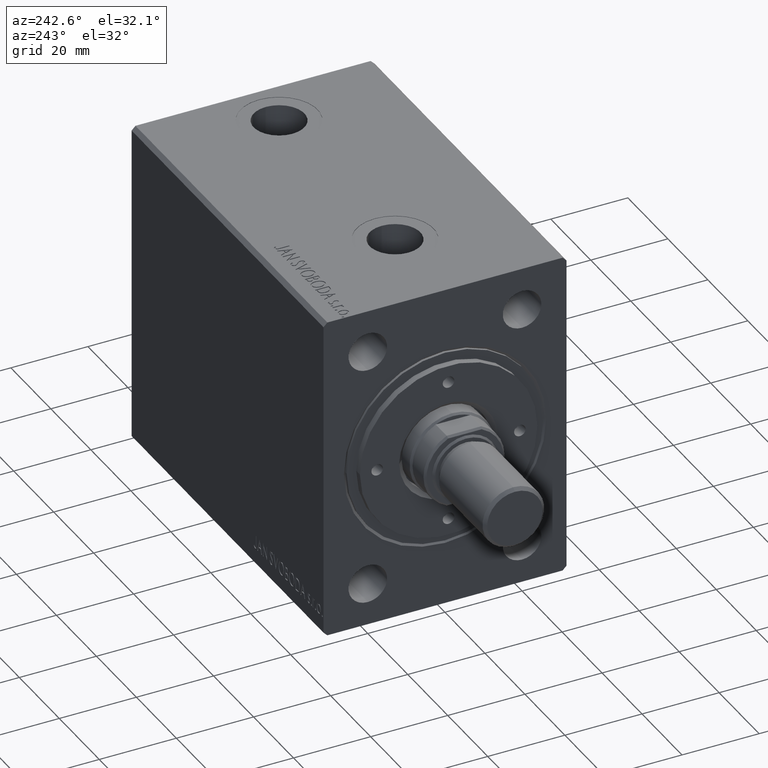
[diagram: clean part render]
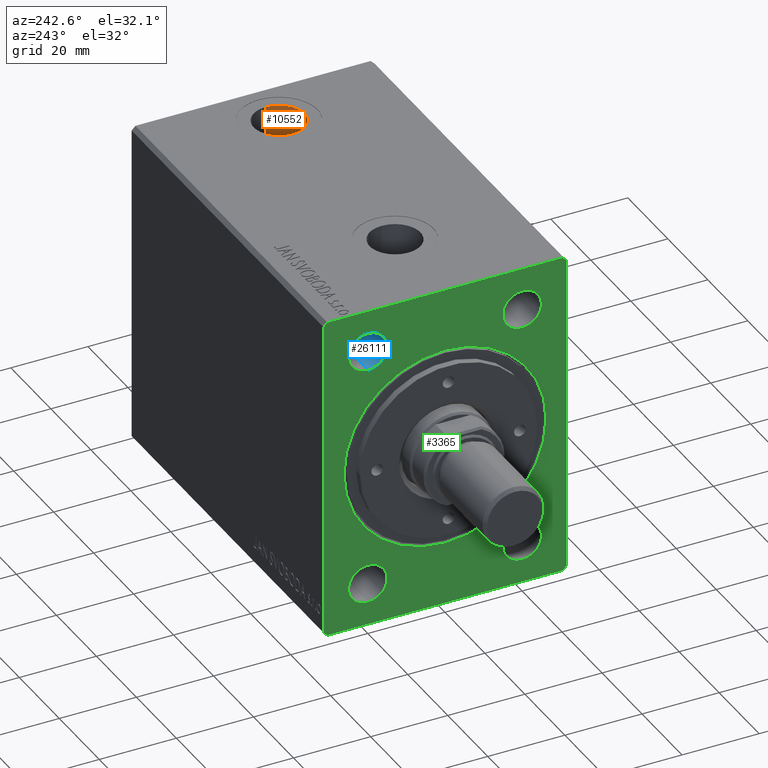
[diagram: same view with three faces highlighted in distinct colors, each labeled with its STEP entity id]
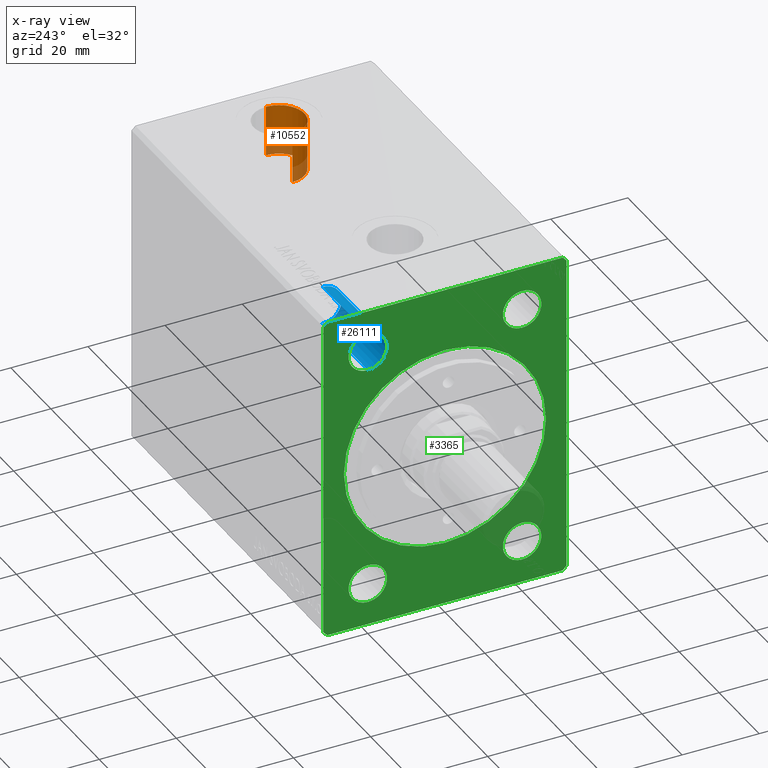
[diagram: x-ray of the same camera — body ghosted, the three highlighted faces saturated]
A machine part, auxiliary view with three faces highlighted in distinct colors.
The next image is the same camera in x-ray (body ghosted, the three faces saturated) — at least one of them is partly hidden behind the body in this view.
Their STEP definitions:

[orange] entity #10552 — the highlighted cylindrical surface (edge-blend (fillet) strip) has radius 6.58 mm, axis along (0, 0, 1).
#301 = AXIS2_PLACEMENT_3D ( 'NONE', #34670, #6965, #31275 ) ;
#6825 = VERTEX_POINT ( 'NONE', #18714 ) ;
#6965 = DIRECTION ( 'NONE',  ( -0.000000000000000000, -0.000000000000000000, 1.000000000000000000 ) ) ;
#7195 = FACE_OUTER_BOUND ( 'NONE', #43937, .T. ) ;
#8288 = ORIENTED_EDGE ( 'NONE', *, *, #40784, .T. ) ;
#9292 = AXIS2_PLACEMENT_3D ( 'NONE', #37271, #40407, #37033 ) ;
#10552 = ADVANCED_FACE ( 'NONE', ( #7195 ), #24074, .F. ) ;
#10825 = ORIENTED_EDGE ( 'NONE', *, *, #27005, .F. ) ;
#11871 = LINE ( 'NONE', #32581, #38001 ) ;
#12043 = VERTEX_POINT ( 'NONE', #18283 ) ;
#12824 = CIRCLE ( 'NONE', #41573, 6.580000000000002736 ) ;
#15473 = ORIENTED_EDGE ( 'NONE', *, *, #43329, .T. ) ;
#18283 = CARTESIAN_POINT ( 'NONE',  ( 76.42000000000000171, 1.343112912526420051E-15, 42.39999999999999147 ) ) ;
#18644 = CIRCLE ( 'NONE', #9292, 6.580000000000002736 ) ;
#18714 = CARTESIAN_POINT ( 'NONE',  ( 89.58000000000001251, 5.372953186874616010E-16, 42.39999999999999147 ) ) ;
#19372 = LINE ( 'NONE', #30614, #21237 ) ;
#21237 = VECTOR ( 'NONE', #22961, 1000.000000000000000 ) ;
#21427 = CARTESIAN_POINT ( 'NONE',  ( 89.58000000000001251, 5.372953186874616010E-16, 29.23999999999999488 ) ) ;
#22434 = DIRECTION ( 'NONE',  ( -0.000000000000000000, -0.000000000000000000, 1.000000000000000000 ) ) ;
#22961 = DIRECTION ( 'NONE',  ( -0.000000000000000000, -0.000000000000000000, 1.000000000000000000 ) ) ;
#24074 = CYLINDRICAL_SURFACE ( 'NONE', #301, 6.580000000000002736 ) ;
#24278 = DIRECTION ( 'NONE',  ( 1.000000000000000000, 0.000000000000000000, 0.000000000000000000 ) ) ;
#27005 = EDGE_CURVE ( 'NONE', #43912, #6825, #19372, .T. ) ;
#29013 = CARTESIAN_POINT ( 'NONE',  ( 76.42000000000000171, 1.343112912526420051E-15, 29.23999999999999488 ) ) ;
#30614 = CARTESIAN_POINT ( 'NONE',  ( 89.58000000000001251, 5.372953186874616010E-16, 29.23999999999999488 ) ) ;
#31275 = DIRECTION ( 'NONE',  ( 1.000000000000000000, 0.000000000000000000, 0.000000000000000000 ) ) ;
#32581 = CARTESIAN_POINT ( 'NONE',  ( 76.42000000000000171, 1.343112912526420051E-15, 29.23999999999999488 ) ) ;
#34670 = CARTESIAN_POINT ( 'NONE',  ( 83.00000000000000000, 5.372953186874616010E-16, 29.23999999999999488 ) ) ;
#35467 = ORIENTED_EDGE ( 'NONE', *, *, #40553, .F. ) ;
#37033 = DIRECTION ( 'NONE',  ( 1.000000000000000000, 0.000000000000000000, 0.000000000000000000 ) ) ;
#37271 = CARTESIAN_POINT ( 'NONE',  ( 83.00000000000000000, 5.372953186874616010E-16, 42.39999999999999147 ) ) ;
#37795 = DIRECTION ( 'NONE',  ( 0.000000000000000000, 0.000000000000000000, 1.000000000000000000 ) ) ;
#38001 = VECTOR ( 'NONE', #22434, 1000.000000000000000 ) ;
#38453 = CARTESIAN_POINT ( 'NONE',  ( 83.00000000000000000, 5.372953186874616010E-16, 29.23999999999999488 ) ) ;
#40407 = DIRECTION ( 'NONE',  ( 0.000000000000000000, 0.000000000000000000, 1.000000000000000000 ) ) ;
#40553 = EDGE_CURVE ( 'NONE', #44169, #43912, #12824, .T. ) ;
#40784 = EDGE_CURVE ( 'NONE', #44169, #12043, #11871, .T. ) ;
#41573 = AXIS2_PLACEMENT_3D ( 'NONE', #38453, #37795, #24278 ) ;
#43329 = EDGE_CURVE ( 'NONE', #12043, #6825, #18644, .T. ) ;
#43912 = VERTEX_POINT ( 'NONE', #21427 ) ;
#43937 = EDGE_LOOP ( 'NONE', ( #35467, #8288, #15473, #10825 ) ) ;
#44169 = VERTEX_POINT ( 'NONE', #29013 ) ;

[blue] entity #26111 — the highlighted cylindrical surface (edge-blend (fillet) strip) has radius 5 mm, axis along (-1, -0, -0).
#14 = VERTEX_POINT ( 'NONE', #28937 ) ;
#1633 = CARTESIAN_POINT ( 'NONE',  ( 1.224646799147350495E-16, 19.99999999999999645, 36.50000000000000000 ) ) ;
#2680 = DIRECTION ( 'NONE',  ( -1.000000000000000000, -0.000000000000000000, -0.000000000000000000 ) ) ;
#3265 = AXIS2_PLACEMENT_3D ( 'NONE', #23634, #2680, #13056 ) ;
#5880 = ORIENTED_EDGE ( 'NONE', *, *, #27435, .T. ) ;
#6218 = VERTEX_POINT ( 'NONE', #1633 ) ;
#7215 = CARTESIAN_POINT ( 'NONE',  ( 1.224646799147350495E-16, 19.99999999999999645, 26.50000000000000355 ) ) ;
#7371 = CARTESIAN_POINT ( 'NONE',  ( 1.224646799147350495E-16, 19.99999999999999645, 31.50000000000000000 ) ) ;
#7874 = LINE ( 'NONE', #38934, #34328 ) ;
#8556 = VECTOR ( 'NONE', #30145, 1000.000000000000000 ) ;
#8629 = CARTESIAN_POINT ( 'NONE',  ( 22.67000000000000171, 19.99999999999999645, 26.50000000000000711 ) ) ;
#12479 = DIRECTION ( 'NONE',  ( -1.000000000000000000, -0.000000000000000000, -0.000000000000000000 ) ) ;
#13056 = DIRECTION ( 'NONE',  ( 0.000000000000000000, 0.000000000000000000, 1.000000000000000000 ) ) ;
#15000 = EDGE_CURVE ( 'NONE', #14, #6218, #7874, .T. ) ;
#18407 = CIRCLE ( 'NONE', #31364, 4.999999999999997335 ) ;
#18954 = EDGE_CURVE ( 'NONE', #33465, #14, #33698, .T. ) ;
#19064 = ORIENTED_EDGE ( 'NONE', *, *, #18954, .F. ) ;
#19582 = EDGE_CURVE ( 'NONE', #33465, #37118, #39606, .T. ) ;
#20432 = DIRECTION ( 'NONE',  ( -1.000000000000000000, -0.000000000000000000, -0.000000000000000000 ) ) ;
#23395 = CYLINDRICAL_SURFACE ( 'NONE', #3265, 4.999999999999997335 ) ;
#23634 = CARTESIAN_POINT ( 'NONE',  ( 0.000000000000000000, 19.99999999999999645, 31.50000000000000000 ) ) ;
#26111 = ADVANCED_FACE ( 'NONE', ( #40065 ), #23395, .F. ) ;
#27435 = EDGE_CURVE ( 'NONE', #37118, #6218, #18407, .T. ) ;
#28937 = CARTESIAN_POINT ( 'NONE',  ( 22.67000000000000171, 19.99999999999999645, 36.49999999999999289 ) ) ;
#30145 = DIRECTION ( 'NONE',  ( -1.000000000000000000, -0.000000000000000000, -0.000000000000000000 ) ) ;
#31292 = DIRECTION ( 'NONE',  ( -1.000000000000000000, -0.000000000000000000, -0.000000000000000000 ) ) ;
#31364 = AXIS2_PLACEMENT_3D ( 'NONE', #7371, #20432, #34180 ) ;
#32973 = CARTESIAN_POINT ( 'NONE',  ( 22.67000000000000171, 19.99999999999999645, 31.50000000000000000 ) ) ;
#33465 = VERTEX_POINT ( 'NONE', #8629 ) ;
#33698 = CIRCLE ( 'NONE', #39444, 4.999999999999990230 ) ;
#34180 = DIRECTION ( 'NONE',  ( 0.000000000000000000, 0.000000000000000000, 1.000000000000000000 ) ) ;
#34328 = VECTOR ( 'NONE', #31292, 1000.000000000000000 ) ;
#34880 = ORIENTED_EDGE ( 'NONE', *, *, #15000, .F. ) ;
#35918 = DIRECTION ( 'NONE',  ( 0.000000000000000000, 0.000000000000000000, 1.000000000000000000 ) ) ;
#36017 = CARTESIAN_POINT ( 'NONE',  ( 0.000000000000000000, 19.99999999999999645, 26.50000000000000355 ) ) ;
#36522 = ORIENTED_EDGE ( 'NONE', *, *, #19582, .T. ) ;
#37118 = VERTEX_POINT ( 'NONE', #7215 ) ;
#38934 = CARTESIAN_POINT ( 'NONE',  ( 0.000000000000000000, 19.99999999999999645, 36.50000000000000000 ) ) ;
#39444 = AXIS2_PLACEMENT_3D ( 'NONE', #32973, #12479, #35918 ) ;
#39606 = LINE ( 'NONE', #36017, #8556 ) ;
#40065 = FACE_OUTER_BOUND ( 'NONE', #40706, .T. ) ;
#40706 = EDGE_LOOP ( 'NONE', ( #19064, #36522, #5880, #34880 ) ) ;

[green] entity #3365 — the highlighted planar face has unit normal (1, 0, 0).
#645 = DIRECTION ( 'NONE',  ( -1.000000000000000000, -0.000000000000000000, -0.000000000000000000 ) ) ;
#1633 = CARTESIAN_POINT ( 'NONE',  ( 1.224646799147350495E-16, 19.99999999999999645, 36.50000000000000000 ) ) ;
#2065 = EDGE_LOOP ( 'NONE', ( #19836, #41101 ) ) ;
#2201 = CARTESIAN_POINT ( 'NONE',  ( 0.000000000000000000, 0.000000000000000000, 0.000000000000000000 ) ) ;
#2312 = DIRECTION ( 'NONE',  ( 0.000000000000000000, -1.000000000000000000, 0.000000000000000000 ) ) ;
#2432 = ORIENTED_EDGE ( 'NONE', *, *, #26787, .F. ) ;
#2538 = CIRCLE ( 'NONE', #21960, 4.999999999999997335 ) ;
#2687 = CARTESIAN_POINT ( 'NONE',  ( 1.224646799147350495E-16, -20.00000000000000355, -26.50000000000000355 ) ) ;
#2905 = CARTESIAN_POINT ( 'NONE',  ( 1.224646799147350495E-16, 19.99999999999999645, -36.50000000000000000 ) ) ;
#2922 = LINE ( 'NONE', #9473, #10639 ) ;
#2939 = DIRECTION ( 'NONE',  ( 1.000000000000000000, 0.000000000000000000, 0.000000000000000000 ) ) ;
#3365 = ADVANCED_FACE ( 'NONE', ( #43057, #29547, #6122, #8624, #43709, #12226 ), #16042, .F. ) ;
#3721 = EDGE_CURVE ( 'NONE', #6218, #37118, #40381, .T. ) ;
#3771 = EDGE_CURVE ( 'NONE', #32125, #42531, #26450, .T. ) ;
#6122 = FACE_BOUND ( 'NONE', #13890, .T. ) ;
#6218 = VERTEX_POINT ( 'NONE', #1633 ) ;
#6695 = VERTEX_POINT ( 'NONE', #35173 ) ;
#7215 = CARTESIAN_POINT ( 'NONE',  ( 1.224646799147350495E-16, 19.99999999999999645, 26.50000000000000355 ) ) ;
#7249 = VERTEX_POINT ( 'NONE', #35003 ) ;
#7358 = ORIENTED_EDGE ( 'NONE', *, *, #17651, .T. ) ;
#7371 = CARTESIAN_POINT ( 'NONE',  ( 1.224646799147350495E-16, 19.99999999999999645, 31.50000000000000000 ) ) ;
#7490 = CARTESIAN_POINT ( 'NONE',  ( 0.000000000000000000, 31.50000000000001421, -41.50000000000000711 ) ) ;
#8065 = EDGE_CURVE ( 'NONE', #19949, #39845, #37645, .T. ) ;
#8477 = AXIS2_PLACEMENT_3D ( 'NONE', #12330, #18420, #25396 ) ;
#8491 = CIRCLE ( 'NONE', #19994, 26.20000000000001350 ) ;
#8624 = FACE_BOUND ( 'NONE', #12320, .T. ) ;
#8767 = ORIENTED_EDGE ( 'NONE', *, *, #44064, .F. ) ;
#9473 = CARTESIAN_POINT ( 'NONE',  ( 0.000000000000000000, -31.50000000000000000, 41.49999999999999289 ) ) ;
#10474 = VERTEX_POINT ( 'NONE', #2905 ) ;
#10639 = VECTOR ( 'NONE', #24094, 1000.000000000000000 ) ;
#10811 = CARTESIAN_POINT ( 'NONE',  ( 0.000000000000000000, 31.50000000000001421, 41.49999999999999289 ) ) ;
#11213 = DIRECTION ( 'NONE',  ( 0.000000000000000000, 0.7071067811865451302, -0.7071067811865500152 ) ) ;
#11523 = CARTESIAN_POINT ( 'NONE',  ( 0.000000000000000000, -30.50000000000000711, -42.50000000000000711 ) ) ;
#11864 = EDGE_CURVE ( 'NONE', #31024, #34440, #33392, .T. ) ;
#11886 = CIRCLE ( 'NONE', #37043, 4.999999999999997335 ) ;
#12180 = CARTESIAN_POINT ( 'NONE',  ( 1.224646799147350495E-16, 19.99999999999999645, -31.50000000000000000 ) ) ;
#12200 = VERTEX_POINT ( 'NONE', #27467 ) ;
#12226 = FACE_OUTER_BOUND ( 'NONE', #21405, .T. ) ;
#12320 = EDGE_LOOP ( 'NONE', ( #21389, #32622 ) ) ;
#12330 = CARTESIAN_POINT ( 'NONE',  ( 1.224646799147350495E-16, -20.00000000000000355, -31.50000000000000000 ) ) ;
#12577 = DIRECTION ( 'NONE',  ( 0.000000000000000000, 0.000000000000000000, -1.000000000000000000 ) ) ;
#12590 = VECTOR ( 'NONE', #29145, 999.9999999999998863 ) ;
#13184 = DIRECTION ( 'NONE',  ( 0.000000000000000000, 0.000000000000000000, 1.000000000000000000 ) ) ;
#13200 = CARTESIAN_POINT ( 'NONE',  ( 0.000000000000000000, 30.50000000000001776, -42.50000000000000711 ) ) ;
#13277 = CARTESIAN_POINT ( 'NONE',  ( 0.000000000000000000, 0.000000000000000000, 26.20000000000001350 ) ) ;
#13406 = DIRECTION ( 'NONE',  ( -1.000000000000000000, -0.000000000000000000, -0.000000000000000000 ) ) ;
#13751 = VERTEX_POINT ( 'NONE', #16499 ) ;
#13890 = EDGE_LOOP ( 'NONE', ( #2432, #8767 ) ) ;
#14028 = EDGE_CURVE ( 'NONE', #7249, #27028, #2538, .T. ) ;
#14092 = EDGE_CURVE ( 'NONE', #12200, #31024, #38485, .T. ) ;
#14162 = DIRECTION ( 'NONE',  ( 0.000000000000000000, 0.000000000000000000, 1.000000000000000000 ) ) ;
#15418 = CARTESIAN_POINT ( 'NONE',  ( 0.000000000000000000, -30.50000000000000355, 42.49999999999999289 ) ) ;
#15455 = EDGE_CURVE ( 'NONE', #39845, #19949, #42223, .T. ) ;
#15953 = DIRECTION ( 'NONE',  ( 1.000000000000000000, 0.000000000000000000, 0.000000000000000000 ) ) ;
#16042 = PLANE ( 'NONE',  #23116 ) ;
#16171 = ORIENTED_EDGE ( 'NONE', *, *, #18678, .F. ) ;
#16187 = ORIENTED_EDGE ( 'NONE', *, *, #26840, .F. ) ;
#16408 = EDGE_CURVE ( 'NONE', #21937, #6695, #2922, .T. ) ;
#16499 = CARTESIAN_POINT ( 'NONE',  ( 0.000000000000000000, -30.50000000000000711, -42.50000000000000711 ) ) ;
#16520 = AXIS2_PLACEMENT_3D ( 'NONE', #29290, #43017, #39646 ) ;
#17160 = ORIENTED_EDGE ( 'NONE', *, *, #3721, .F. ) ;
#17620 = VECTOR ( 'NONE', #2312, 1000.000000000000000 ) ;
#17651 = EDGE_CURVE ( 'NONE', #42095, #26939, #8491, .T. ) ;
#17744 = ORIENTED_EDGE ( 'NONE', *, *, #34704, .F. ) ;
#18225 = AXIS2_PLACEMENT_3D ( 'NONE', #20878, #34182, #41350 ) ;
#18407 = CIRCLE ( 'NONE', #31364, 4.999999999999997335 ) ;
#18420 = DIRECTION ( 'NONE',  ( -1.000000000000000000, -0.000000000000000000, -0.000000000000000000 ) ) ;
#18678 = EDGE_CURVE ( 'NONE', #6695, #13751, #42028, .T. ) ;
#19363 = CARTESIAN_POINT ( 'NONE',  ( 0.000000000000000000, 3.208574613766067271E-15, -26.20000000000001350 ) ) ;
#19692 = CARTESIAN_POINT ( 'NONE',  ( 0.000000000000000000, 31.50000000000001421, -41.50000000000000711 ) ) ;
#19836 = ORIENTED_EDGE ( 'NONE', *, *, #32791, .F. ) ;
#19949 = VERTEX_POINT ( 'NONE', #25286 ) ;
#19994 = AXIS2_PLACEMENT_3D ( 'NONE', #2201, #15953, #12577 ) ;
#20115 = CIRCLE ( 'NONE', #16520, 4.999999999999997335 ) ;
#20390 = CARTESIAN_POINT ( 'NONE',  ( 1.224646799147350495E-16, -20.00000000000000355, 31.50000000000000000 ) ) ;
#20413 = ORIENTED_EDGE ( 'NONE', *, *, #41965, .F. ) ;
#20432 = DIRECTION ( 'NONE',  ( -1.000000000000000000, -0.000000000000000000, -0.000000000000000000 ) ) ;
#20627 = CARTESIAN_POINT ( 'NONE',  ( 0.000000000000000000, -30.50000000000000355, 42.49999999999999289 ) ) ;
#20878 = CARTESIAN_POINT ( 'NONE',  ( 1.224646799147350495E-16, -20.00000000000000355, 31.50000000000000000 ) ) ;
#21389 = ORIENTED_EDGE ( 'NONE', *, *, #8065, .F. ) ;
#21405 = EDGE_LOOP ( 'NONE', ( #39017, #20413, #25640, #16187, #16171, #22901, #17744, #30442 ) ) ;
#21937 = VERTEX_POINT ( 'NONE', #38948 ) ;
#21943 = LINE ( 'NONE', #15418, #12590 ) ;
#21960 = AXIS2_PLACEMENT_3D ( 'NONE', #37826, #26794, #41401 ) ;
#22298 = DIRECTION ( 'NONE',  ( 0.000000000000000000, 0.000000000000000000, 1.000000000000000000 ) ) ;
#22891 = ORIENTED_EDGE ( 'NONE', *, *, #27435, .F. ) ;
#22901 = ORIENTED_EDGE ( 'NONE', *, *, #16408, .F. ) ;
#23008 = DIRECTION ( 'NONE',  ( 1.000000000000000000, 0.000000000000000000, 0.000000000000000000 ) ) ;
#23116 = AXIS2_PLACEMENT_3D ( 'NONE', #26618, #23008, #39682 ) ;
#24094 = DIRECTION ( 'NONE',  ( 0.000000000000000000, 0.000000000000000000, -1.000000000000000000 ) ) ;
#24131 = VECTOR ( 'NONE', #35337, 1000.000000000000114 ) ;
#25253 = DIRECTION ( 'NONE',  ( 0.000000000000000000, 1.000000000000000000, 0.000000000000000000 ) ) ;
#25286 = CARTESIAN_POINT ( 'NONE',  ( 1.224646799147350495E-16, -20.00000000000000355, 36.50000000000000000 ) ) ;
#25396 = DIRECTION ( 'NONE',  ( 0.000000000000000000, 0.000000000000000000, 1.000000000000000000 ) ) ;
#25640 = ORIENTED_EDGE ( 'NONE', *, *, #3771, .F. ) ;
#26450 = LINE ( 'NONE', #33891, #28187 ) ;
#26618 = CARTESIAN_POINT ( 'NONE',  ( 0.000000000000000000, 0.000000000000000000, 0.000000000000000000 ) ) ;
#26787 = EDGE_CURVE ( 'NONE', #26824, #10474, #11886, .T. ) ;
#26794 = DIRECTION ( 'NONE',  ( -1.000000000000000000, -0.000000000000000000, -0.000000000000000000 ) ) ;
#26824 = VERTEX_POINT ( 'NONE', #42783 ) ;
#26840 = EDGE_CURVE ( 'NONE', #13751, #32125, #43224, .T. ) ;
#26878 = CARTESIAN_POINT ( 'NONE',  ( 0.000000000000000000, 30.50000000000001421, 42.49999999999999289 ) ) ;
#26939 = VERTEX_POINT ( 'NONE', #13277 ) ;
#27028 = VERTEX_POINT ( 'NONE', #2687 ) ;
#27435 = EDGE_CURVE ( 'NONE', #37118, #6218, #18407, .T. ) ;
#27467 = CARTESIAN_POINT ( 'NONE',  ( 0.000000000000000000, 31.50000000000001421, 41.49999999999999289 ) ) ;
#27888 = CIRCLE ( 'NONE', #8477, 4.999999999999997335 ) ;
#28187 = VECTOR ( 'NONE', #33433, 999.9999999999998863 ) ;
#28421 = LINE ( 'NONE', #7490, #40870 ) ;
#28561 = CARTESIAN_POINT ( 'NONE',  ( 1.224646799147350495E-16, 19.99999999999999645, 31.50000000000000000 ) ) ;
#29145 = DIRECTION ( 'NONE',  ( 0.000000000000000000, -0.7071067811865462405, -0.7071067811865489050 ) ) ;
#29290 = CARTESIAN_POINT ( 'NONE',  ( 1.224646799147350495E-16, 19.99999999999999645, -31.50000000000000000 ) ) ;
#29547 = FACE_BOUND ( 'NONE', #2065, .T. ) ;
#30084 = VECTOR ( 'NONE', #11213, 1000.000000000000114 ) ;
#30442 = ORIENTED_EDGE ( 'NONE', *, *, #11864, .F. ) ;
#30757 = CIRCLE ( 'NONE', #40803, 26.20000000000001350 ) ;
#31024 = VERTEX_POINT ( 'NONE', #26878 ) ;
#31364 = AXIS2_PLACEMENT_3D ( 'NONE', #7371, #20432, #34180 ) ;
#31589 = DIRECTION ( 'NONE',  ( 0.000000000000000000, 0.000000000000000000, 1.000000000000000000 ) ) ;
#32125 = VERTEX_POINT ( 'NONE', #13200 ) ;
#32127 = CARTESIAN_POINT ( 'NONE',  ( 0.000000000000000000, -31.50000000000000000, -41.50000000000000711 ) ) ;
#32622 = ORIENTED_EDGE ( 'NONE', *, *, #15455, .F. ) ;
#32791 = EDGE_CURVE ( 'NONE', #27028, #7249, #27888, .T. ) ;
#33363 = EDGE_LOOP ( 'NONE', ( #17160, #22891 ) ) ;
#33392 = LINE ( 'NONE', #37212, #17620 ) ;
#33433 = DIRECTION ( 'NONE',  ( 0.000000000000000000, 0.7071067811865462405, 0.7071067811865489050 ) ) ;
#33595 = AXIS2_PLACEMENT_3D ( 'NONE', #20390, #13406, #13184 ) ;
#33891 = CARTESIAN_POINT ( 'NONE',  ( 0.000000000000000000, 30.50000000000001776, -42.50000000000000711 ) ) ;
#34180 = DIRECTION ( 'NONE',  ( 0.000000000000000000, 0.000000000000000000, 1.000000000000000000 ) ) ;
#34182 = DIRECTION ( 'NONE',  ( -1.000000000000000000, -0.000000000000000000, -0.000000000000000000 ) ) ;
#34440 = VERTEX_POINT ( 'NONE', #20627 ) ;
#34704 = EDGE_CURVE ( 'NONE', #34440, #21937, #21943, .T. ) ;
#35003 = CARTESIAN_POINT ( 'NONE',  ( 1.224646799147350495E-16, -20.00000000000000355, -36.50000000000000000 ) ) ;
#35173 = CARTESIAN_POINT ( 'NONE',  ( 0.000000000000000000, -31.50000000000000000, -41.50000000000000711 ) ) ;
#35337 = DIRECTION ( 'NONE',  ( 0.000000000000000000, -0.7071067811865474617, 0.7071067811865474617 ) ) ;
#36338 = VECTOR ( 'NONE', #25253, 1000.000000000000000 ) ;
#36939 = DIRECTION ( 'NONE',  ( 0.000000000000000000, 0.000000000000000000, -1.000000000000000000 ) ) ;
#37043 = AXIS2_PLACEMENT_3D ( 'NONE', #12180, #43005, #22298 ) ;
#37118 = VERTEX_POINT ( 'NONE', #7215 ) ;
#37212 = CARTESIAN_POINT ( 'NONE',  ( 0.000000000000000000, 30.50000000000001421, 42.49999999999999289 ) ) ;
#37645 = CIRCLE ( 'NONE', #18225, 4.999999999999997335 ) ;
#37826 = CARTESIAN_POINT ( 'NONE',  ( 1.224646799147350495E-16, -20.00000000000000355, -31.50000000000000000 ) ) ;
#38485 = LINE ( 'NONE', #10811, #24131 ) ;
#38948 = CARTESIAN_POINT ( 'NONE',  ( 0.000000000000000000, -31.50000000000000000, 41.49999999999999289 ) ) ;
#39017 = ORIENTED_EDGE ( 'NONE', *, *, #14092, .F. ) ;
#39166 = EDGE_CURVE ( 'NONE', #26939, #42095, #30757, .T. ) ;
#39398 = ORIENTED_EDGE ( 'NONE', *, *, #39166, .T. ) ;
#39646 = DIRECTION ( 'NONE',  ( 0.000000000000000000, 0.000000000000000000, 1.000000000000000000 ) ) ;
#39682 = DIRECTION ( 'NONE',  ( 0.000000000000000000, 0.000000000000000000, -1.000000000000000000 ) ) ;
#39845 = VERTEX_POINT ( 'NONE', #41807 ) ;
#40381 = CIRCLE ( 'NONE', #43270, 4.999999999999997335 ) ;
#40803 = AXIS2_PLACEMENT_3D ( 'NONE', #44137, #2939, #36939 ) ;
#40870 = VECTOR ( 'NONE', #31589, 1000.000000000000000 ) ;
#41101 = ORIENTED_EDGE ( 'NONE', *, *, #14028, .F. ) ;
#41350 = DIRECTION ( 'NONE',  ( 0.000000000000000000, 0.000000000000000000, 1.000000000000000000 ) ) ;
#41401 = DIRECTION ( 'NONE',  ( 0.000000000000000000, 0.000000000000000000, 1.000000000000000000 ) ) ;
#41807 = CARTESIAN_POINT ( 'NONE',  ( 1.224646799147350495E-16, -20.00000000000000355, 26.50000000000000355 ) ) ;
#41965 = EDGE_CURVE ( 'NONE', #42531, #12200, #28421, .T. ) ;
#42028 = LINE ( 'NONE', #32127, #30084 ) ;
#42095 = VERTEX_POINT ( 'NONE', #19363 ) ;
#42223 = CIRCLE ( 'NONE', #33595, 4.999999999999997335 ) ;
#42531 = VERTEX_POINT ( 'NONE', #19692 ) ;
#42783 = CARTESIAN_POINT ( 'NONE',  ( 1.224646799147350495E-16, 19.99999999999999645, -26.50000000000000355 ) ) ;
#43005 = DIRECTION ( 'NONE',  ( -1.000000000000000000, -0.000000000000000000, -0.000000000000000000 ) ) ;
#43017 = DIRECTION ( 'NONE',  ( -1.000000000000000000, -0.000000000000000000, -0.000000000000000000 ) ) ;
#43057 = FACE_BOUND ( 'NONE', #33363, .T. ) ;
#43224 = LINE ( 'NONE', #11523, #36338 ) ;
#43270 = AXIS2_PLACEMENT_3D ( 'NONE', #28561, #645, #14162 ) ;
#43584 = EDGE_LOOP ( 'NONE', ( #39398, #7358 ) ) ;
#43709 = FACE_BOUND ( 'NONE', #43584, .T. ) ;
#44064 = EDGE_CURVE ( 'NONE', #10474, #26824, #20115, .T. ) ;
#44137 = CARTESIAN_POINT ( 'NONE',  ( 0.000000000000000000, 0.000000000000000000, 0.000000000000000000 ) ) ;